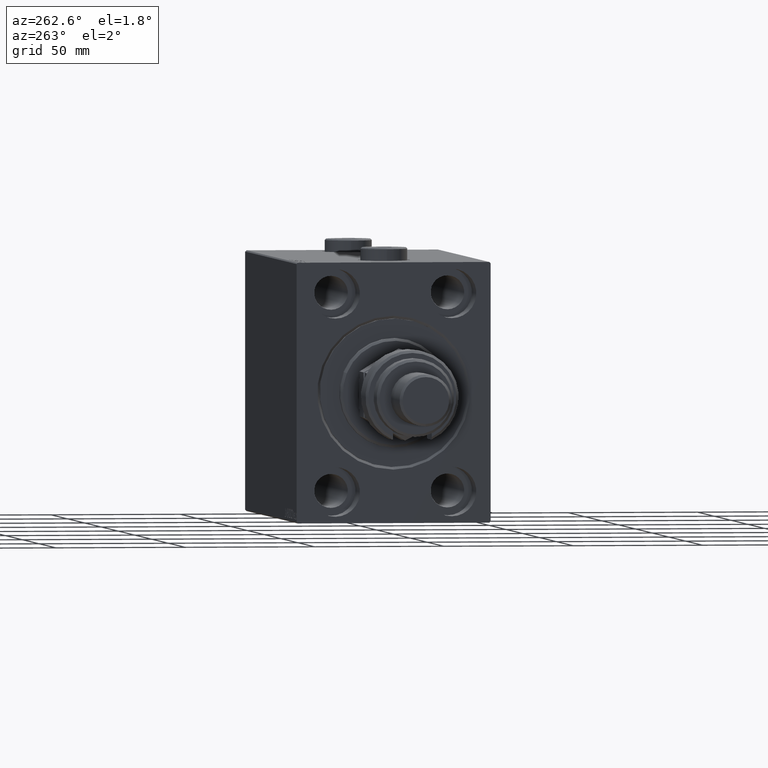
[diagram: clean part render]
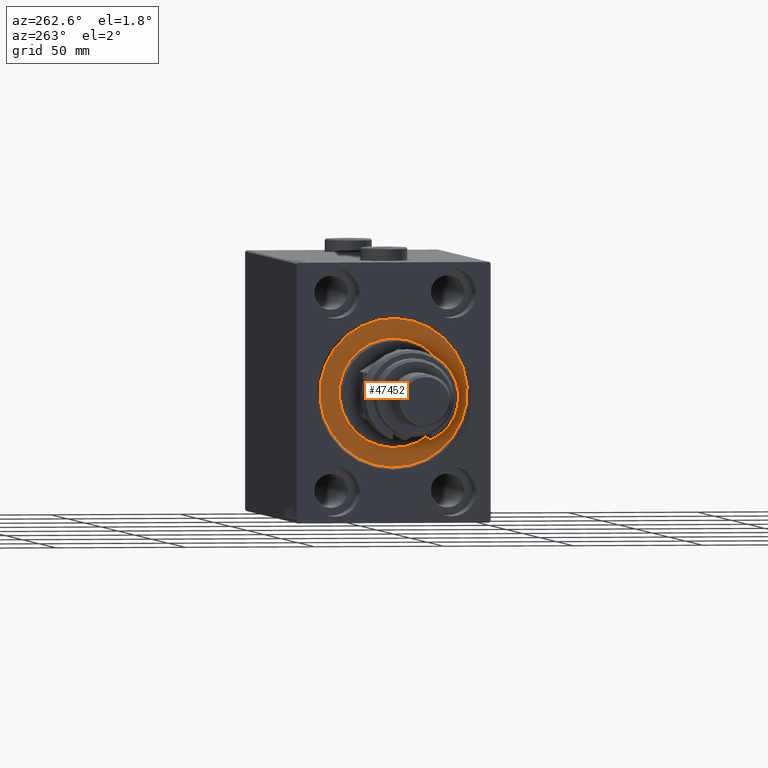
[diagram: same view with one face highlighted and labeled with its STEP entity id]
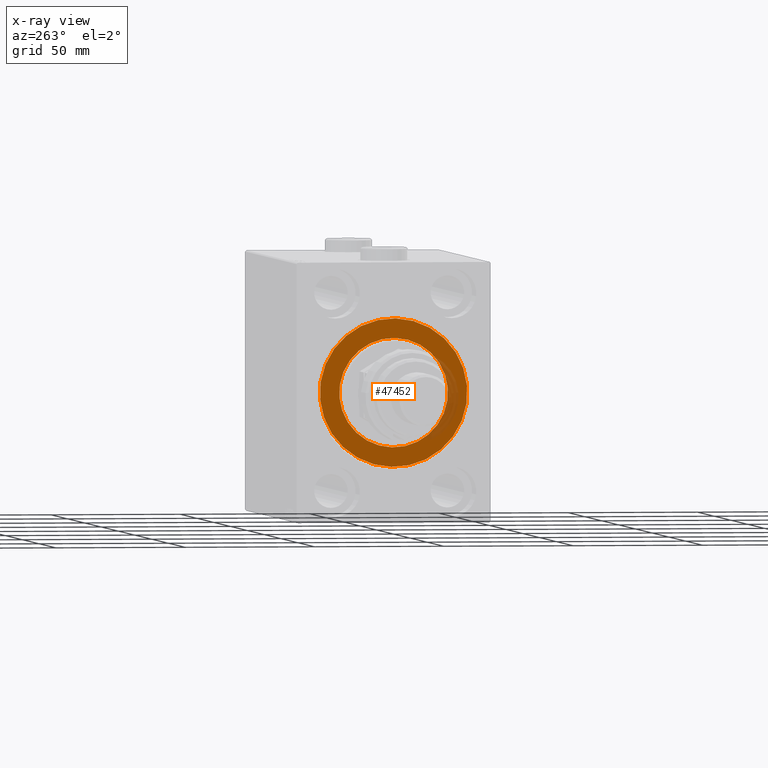
[diagram: x-ray of the same camera — body ghosted, the highlighted face saturated]
A machine part, auxiliary view. The second image highlights one B-rep face of the part: STEP entity #47452.
The next image is the same camera in x-ray: the body ghosted, the highlighted face saturated — about 10% of this face is hidden behind the body in this view.
In plain terms, the highlighted planar face has unit normal (1, 0, -0).
Its self-contained STEP definition (entity closure, byte-faithful):
#1367 = EDGE_CURVE ( 'NONE', #30697, #16029, #38164, .T. ) ;
#2650 = EDGE_CURVE ( 'NONE', #11314, #24251, #25018, .T. ) ;
#3448 = ORIENTED_EDGE ( 'NONE', *, *, #1367, .F. ) ;
#3806 = CARTESIAN_POINT ( 'NONE',  ( 0.000000000000000000, 3.490243377569956456E-15, 28.50000000000000000 ) ) ;
#4111 = ORIENTED_EDGE ( 'NONE', *, *, #29578, .F. ) ;
#5238 = CARTESIAN_POINT ( 'NONE',  ( 0.000000000000000000, 0.000000000000000000, 0.000000000000000000 ) ) ;
#6236 = DIRECTION ( 'NONE',  ( -1.000000000000000000, 0.000000000000000000, 0.000000000000000000 ) ) ;
#9099 = FACE_OUTER_BOUND ( 'NONE', #38673, .T. ) ;
#9821 = CIRCLE ( 'NONE', #16814, 21.00000000000000000 ) ;
#11314 = VERTEX_POINT ( 'NONE', #18170 ) ;
#11401 = DIRECTION ( 'NONE',  ( -1.000000000000000000, 0.000000000000000000, 0.000000000000000000 ) ) ;
#14855 = AXIS2_PLACEMENT_3D ( 'NONE', #47405, #6236, #21833 ) ;
#16029 = VERTEX_POINT ( 'NONE', #28367 ) ;
#16173 = DIRECTION ( 'NONE',  ( 0.000000000000000000, 0.000000000000000000, 1.000000000000000000 ) ) ;
#16203 = DIRECTION ( 'NONE',  ( 1.000000000000000000, -0.000000000000000000, 0.000000000000000000 ) ) ;
#16814 = AXIS2_PLACEMENT_3D ( 'NONE', #26501, #19661, #45240 ) ;
#17188 = ORIENTED_EDGE ( 'NONE', *, *, #2650, .F. ) ;
#18170 = CARTESIAN_POINT ( 'NONE',  ( 0.000000000000000000, 0.000000000000000000, 21.00000000000000000 ) ) ;
#19661 = DIRECTION ( 'NONE',  ( 1.000000000000000000, -0.000000000000000000, 0.000000000000000000 ) ) ;
#20885 = AXIS2_PLACEMENT_3D ( 'NONE', #37699, #11401, #44783 ) ;
#21483 = ORIENTED_EDGE ( 'NONE', *, *, #35936, .F. ) ;
#21833 = DIRECTION ( 'NONE',  ( 0.000000000000000000, 0.000000000000000000, 1.000000000000000000 ) ) ;
#22676 = AXIS2_PLACEMENT_3D ( 'NONE', #5238, #16203, #37891 ) ;
#24251 = VERTEX_POINT ( 'NONE', #29083 ) ;
#25018 = CIRCLE ( 'NONE', #22676, 21.00000000000000000 ) ;
#26501 = CARTESIAN_POINT ( 'NONE',  ( 0.000000000000000000, 0.000000000000000000, 0.000000000000000000 ) ) ;
#27391 = DIRECTION ( 'NONE',  ( -1.000000000000000000, 0.000000000000000000, 0.000000000000000000 ) ) ;
#28367 = CARTESIAN_POINT ( 'NONE',  ( 0.000000000000000000, 0.000000000000000000, -28.50000000000000000 ) ) ;
#29083 = CARTESIAN_POINT ( 'NONE',  ( 0.000000000000000000, 2.571758278209441661E-15, -21.00000000000000000 ) ) ;
#29578 = EDGE_CURVE ( 'NONE', #24251, #11314, #9821, .T. ) ;
#30697 = VERTEX_POINT ( 'NONE', #3806 ) ;
#35936 = EDGE_CURVE ( 'NONE', #16029, #30697, #40331, .T. ) ;
#37699 = CARTESIAN_POINT ( 'NONE',  ( 0.000000000000000000, 0.000000000000000000, 0.000000000000000000 ) ) ;
#37891 = DIRECTION ( 'NONE',  ( 0.000000000000000000, 0.000000000000000000, -1.000000000000000000 ) ) ;
#38102 = CARTESIAN_POINT ( 'NONE',  ( 0.000000000000000000, 0.000000000000000000, 0.000000000000000000 ) ) ;
#38164 = CIRCLE ( 'NONE', #14855, 28.50000000000000000 ) ;
#38344 = PLANE ( 'NONE',  #42878 ) ;
#38673 = EDGE_LOOP ( 'NONE', ( #21483, #3448 ) ) ;
#40331 = CIRCLE ( 'NONE', #20885, 28.50000000000000000 ) ;
#42878 = AXIS2_PLACEMENT_3D ( 'NONE', #38102, #27391, #16173 ) ;
#44253 = EDGE_LOOP ( 'NONE', ( #17188, #4111 ) ) ;
#44783 = DIRECTION ( 'NONE',  ( 0.000000000000000000, 0.000000000000000000, 1.000000000000000000 ) ) ;
#45240 = DIRECTION ( 'NONE',  ( 0.000000000000000000, 0.000000000000000000, -1.000000000000000000 ) ) ;
#46373 = FACE_BOUND ( 'NONE', #44253, .T. ) ;
#47405 = CARTESIAN_POINT ( 'NONE',  ( 0.000000000000000000, 0.000000000000000000, 0.000000000000000000 ) ) ;
#47452 = ADVANCED_FACE ( 'NONE', ( #46373, #9099 ), #38344, .F. ) ;